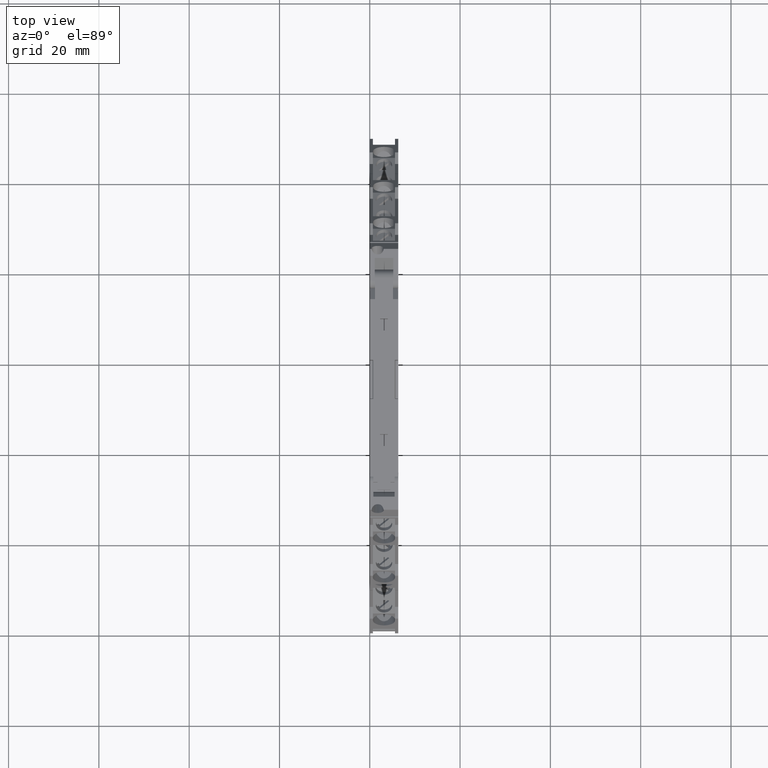
[diagram: clean part render]
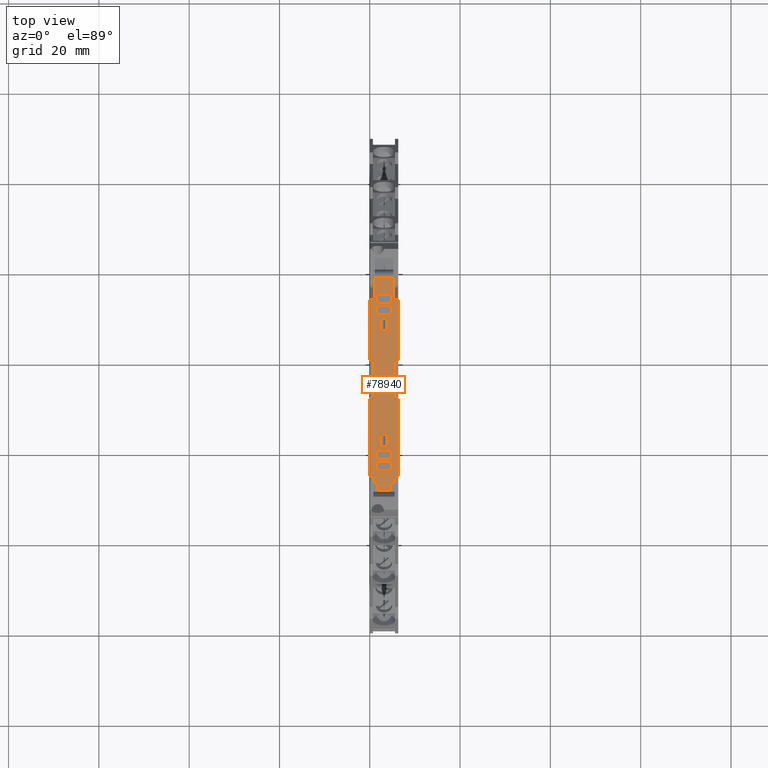
[diagram: same view with one face highlighted and labeled with its STEP entity id]
A machine part, top view. The second image highlights one B-rep face of the part: STEP entity #78940.
In plain terms, the highlighted planar face has unit normal (-0, -0, 1).
Its self-contained STEP definition (entity closure, byte-faithful):
#74280=CARTESIAN_POINT('',(-6.49927640812146,110.199999999949,
-13.9000000015476));
#74290=VERTEX_POINT('',#74280);
#74500=CARTESIAN_POINT('',(-6.57178382632163,110.200000000039,
-11.5500000059275));
#74510=DIRECTION('',(-1.11019430027813E-16,1.,-3.82693666728665E-11));
#74520=DIRECTION('',(-1.,-1.11022301460784E-16,-7.50321528832784E-11));
#74530=AXIS2_PLACEMENT_3D('',#74500,#74510,#74520);
#74540=PLANE('',#74530);
#74550=CARTESIAN_POINT('',(1.15118559197526,110.200000000072,
-10.6911201562861));
#74560=DIRECTION('',(1.,1.11022301450449E-16,7.50321528832784E-11));
#74570=VECTOR('',#74560,1.);
#74580=LINE('',#74550,#74570);
#74590=CARTESIAN_POINT('',(26.7713220694702,110.200000000072,
-10.6911201543637));
#74600=VERTEX_POINT('',#74590);
#74610=CARTESIAN_POINT('',(29.4301250925826,110.200000000072,
-10.6911201541642));
#74620=VERTEX_POINT('',#74610);
#74630=EDGE_CURVE('',#74600,#74620,#74580,.T.);
#74640=ORIENTED_EDGE('',*,*,#74630,.F.);
#74650=CARTESIAN_POINT('',(29.4301250917729,110.200000000485,
0.100000000591375));
#74660=DIRECTION('',(7.50321528832784E-11,-3.82693666728665E-11,-1.));
#74670=VECTOR('',#74660,1.);
#74680=LINE('',#74650,#74670);
#74690=CARTESIAN_POINT('',(29.4301250927115,110.200000000006,
-12.4088798519802));
#74700=VERTEX_POINT('',#74690);
#74710=EDGE_CURVE('',#74620,#74700,#74680,.T.);
#74720=ORIENTED_EDGE('',*,*,#74710,.F.);
#74730=CARTESIAN_POINT('',(1.15118559199036,110.200000000006,
-12.408879854102));
#74740=DIRECTION('',(-1.,-1.11022301450449E-16,-7.50321528832784E-11));
#74750=VECTOR('',#74740,1.);
#74760=LINE('',#74730,#74750);
#74770=CARTESIAN_POINT('',(26.7713220695991,110.200000000006,
-12.4088798521797));
#74780=VERTEX_POINT('',#74770);
#74790=EDGE_CURVE('',#74700,#74780,#74760,.T.);
#74800=ORIENTED_EDGE('',*,*,#74790,.F.);
#74810=CARTESIAN_POINT('',(26.7713220686605,110.200000000485,
0.100000000567998));
#74820=DIRECTION('',(-7.50321528832784E-11,3.82693666728665E-11,1.));
#74830=VECTOR('',#74820,1.);
#74840=LINE('',#74810,#74830);
#74850=EDGE_CURVE('',#74780,#74600,#74840,.T.);
#74860=ORIENTED_EDGE('',*,*,#74850,.F.);
#74870=EDGE_LOOP('',(#74860,#74800,#74720,#74640));
#74880=FACE_BOUND('',#74870,.T.);
#74890=CARTESIAN_POINT('',(1.15118559197526,110.200000000072,
-10.6911201562861));
#74900=DIRECTION('',(1.,1.11022301450449E-16,7.50321528832784E-11));
#74910=VECTOR('',#74900,1.);
#74920=LINE('',#74890,#74910);
#74930=CARTESIAN_POINT('',(1.17132209109853,110.200000000072,
-10.6911201562846));
#74940=VERTEX_POINT('',#74930);
#74950=CARTESIAN_POINT('',(3.83012511421093,110.200000000072,
-10.6911201560851));
#74960=VERTEX_POINT('',#74950);
#74970=EDGE_CURVE('',#74940,#74960,#74920,.T.);
#74980=ORIENTED_EDGE('',*,*,#74970,.F.);
#74990=CARTESIAN_POINT('',(3.83012511340125,110.200000000485,
0.100000000366296));
#75000=DIRECTION('',(7.50321528832784E-11,-3.82693666728665E-11,-1.));
#75010=VECTOR('',#75000,1.);
#75020=LINE('',#74990,#75010);
#75030=CARTESIAN_POINT('',(3.83012511433982,110.200000000006,
-12.408879853901));
#75040=VERTEX_POINT('',#75030);
#75050=EDGE_CURVE('',#74960,#75040,#75020,.T.);
#75060=ORIENTED_EDGE('',*,*,#75050,.F.);
#75070=CARTESIAN_POINT('',(1.15118559199036,110.200000000006,
-12.408879854102));
#75080=DIRECTION('',(-1.,-1.11022301450449E-16,-7.50321528832784E-11));
#75090=VECTOR('',#75080,1.);
#75100=LINE('',#75070,#75090);
#75110=CARTESIAN_POINT('',(1.17132209122742,110.200000000006,
-12.4088798541005));
#75120=VERTEX_POINT('',#75110);
#75130=EDGE_CURVE('',#75040,#75120,#75100,.T.);
#75140=ORIENTED_EDGE('',*,*,#75130,.F.);
#75150=CARTESIAN_POINT('',(1.17132209028885,110.200000000485,
0.100000000342919));
#75160=DIRECTION('',(-7.50321528832784E-11,3.82693666728665E-11,1.));
#75170=VECTOR('',#75160,1.);
#75180=LINE('',#75150,#75170);
#75190=EDGE_CURVE('',#75120,#74940,#75180,.T.);
#75200=ORIENTED_EDGE('',*,*,#75190,.F.);
#75210=EDGE_LOOP('',(#75200,#75140,#75060,#74980));
#75220=FACE_BOUND('',#75210,.T.);
#75230=CARTESIAN_POINT('',(1.15118559196478,110.200000000118,
-9.50000000156393));
#75240=DIRECTION('',(-1.,-1.11019519299545E-16,-2.33272930840562E-12));
#75250=VECTOR('',#75240,1.);
#75260=LINE('',#75230,#75250);
#75270=CARTESIAN_POINT('',(38.500723592,110.200000000118,
-9.5000000014768));
#75280=VERTEX_POINT('',#75270);
#75290=CARTESIAN_POINT('',(38.0007235920675,110.200000000075,
-9.50000000147797));
#75300=VERTEX_POINT('',#75290);
#75310=EDGE_CURVE('',#75280,#75300,#75260,.T.);
#75320=ORIENTED_EDGE('',*,*,#75310,.F.);
#75330=CARTESIAN_POINT('',(38.0007235920713,110.200000000074,
-9.55000300242922));
#75340=DIRECTION('',(-7.50329127375884E-11,3.82702498448278E-11,1.));
#75350=VECTOR('',#75340,1.);
#75360=LINE('',#75330,#75350);
#75370=CARTESIAN_POINT('',(38.0007235920713,110.200000000116,
-9.55000000242922));
#75380=VERTEX_POINT('',#75370);
#75390=EDGE_CURVE('',#75380,#75300,#75360,.T.);
#75400=ORIENTED_EDGE('',*,*,#75390,.T.);
#75410=CARTESIAN_POINT('',(1.15118559196522,110.200000000116,
-9.55000000519412));
#75420=DIRECTION('',(-1.,-1.11022301450449E-16,-7.50321528832784E-11));
#75430=VECTOR('',#75420,1.);
#75440=LINE('',#75410,#75430);
#75450=CARTESIAN_POINT('',(33.7493922405502,110.200000000116,
-9.55000000274821));
#75460=VERTEX_POINT('',#75450);
#75470=EDGE_CURVE('',#75380,#75460,#75440,.T.);
#75480=ORIENTED_EDGE('',*,*,#75470,.F.);
#75490=CARTESIAN_POINT('',(33.7493922398261,110.200000000485,
0.10000000062935));
#75500=DIRECTION('',(7.50321528832784E-11,-3.82693666728665E-11,-1.));
#75510=VECTOR('',#75500,1.);
#75520=LINE('',#75490,#75510);
#75530=CARTESIAN_POINT('',(33.7493922404676,110.200000000158,
-8.45000000282515));
#75540=VERTEX_POINT('',#75530);
#75550=EDGE_CURVE('',#75540,#75460,#75520,.T.);
#75560=ORIENTED_EDGE('',*,*,#75550,.T.);
#75570=CARTESIAN_POINT('',(1.15118559195555,110.200000000158,
-8.45000000527106));
#75580=DIRECTION('',(1.,1.11022301456429E-16,7.50321528832784E-11));
#75590=VECTOR('',#75580,1.);
#75600=LINE('',#75570,#75590);
#75610=CARTESIAN_POINT('',(20.298501746368,110.200000000158,
-8.4500000038344));
#75620=VERTEX_POINT('',#75610);
#75630=EDGE_CURVE('',#75620,#75540,#75600,.T.);
#75640=ORIENTED_EDGE('',*,*,#75630,.T.);
#75650=CARTESIAN_POINT('',(20.2985017457265,110.200000000485,
0.100000000511088));
#75660=DIRECTION('',(7.50321528832784E-11,-3.82693666728665E-11,-1.));
#75670=VECTOR('',#75660,1.);
#75680=LINE('',#75650,#75670);
#75690=CARTESIAN_POINT('',(20.2985017464204,110.200000000131,
-9.14777815563321));
#75700=VERTEX_POINT('',#75690);
#75710=EDGE_CURVE('',#75620,#75700,#75680,.T.);
#75720=ORIENTED_EDGE('',*,*,#75710,.F.);
#75730=CARTESIAN_POINT('',(1.15118559196169,110.200000000131,
-9.14777815706988));
#75740=DIRECTION('',(-1.,-1.11022301455509E-16,-7.50321528832784E-11));
#75750=VECTOR('',#75740,1.);
#75760=LINE('',#75730,#75750);
#75770=CARTESIAN_POINT('',(11.7029454372739,110.200000000131,
-9.14777815627816));
#75780=VERTEX_POINT('',#75770);
#75790=EDGE_CURVE('',#75700,#75780,#75760,.T.);
#75800=ORIENTED_EDGE('',*,*,#75790,.F.);
#75810=CARTESIAN_POINT('',(11.70294543658,110.200000000485,
0.100000000435515));
#75820=DIRECTION('',(-7.50321528832784E-11,3.82693666728665E-11,1.));
#75830=VECTOR('',#75820,1.);
#75840=LINE('',#75810,#75830);
#75850=CARTESIAN_POINT('',(11.7029454372215,110.200000000158,
-8.45000000447934));
#75860=VERTEX_POINT('',#75850);
#75870=EDGE_CURVE('',#75780,#75860,#75840,.T.);
#75880=ORIENTED_EDGE('',*,*,#75870,.F.);
#75890=CARTESIAN_POINT('',(-5.54571119067333,110.200000000158,
-8.45000000577354));
#75900=VERTEX_POINT('',#75890);
#75910=EDGE_CURVE('',#75900,#75860,#75600,.T.);
#75920=ORIENTED_EDGE('',*,*,#75910,.T.);
#75930=CARTESIAN_POINT('',(-5.54571119065338,110.200000000485,
0.100000000283862));
#75940=DIRECTION('',(2.3327106029319E-12,3.82693666728665E-11,1.));
#75950=VECTOR('',#75940,1.);
#75960=LINE('',#75930,#75950);
#75970=CARTESIAN_POINT('',(-5.54571119067508,110.200000000129,
-9.20000000138976));
#75980=VERTEX_POINT('',#75970);
#75990=EDGE_CURVE('',#75980,#75900,#75960,.T.);
#76000=ORIENTED_EDGE('',*,*,#75990,.T.);
#76010=CARTESIAN_POINT('',(1.15118559196215,110.200000000129,
-9.20000000140538));
#76020=DIRECTION('',(-1.,-1.11019340754548E-16,2.33276942258406E-12));
#76030=VECTOR('',#76020,1.);
#76040=LINE('',#76010,#76030);
#76050=CARTESIAN_POINT('',(-6.49927640809956,110.200000000129,
-9.20000000138753));
#76060=VERTEX_POINT('',#76050);
#76070=EDGE_CURVE('',#75980,#76060,#76040,.T.);
#76080=ORIENTED_EDGE('',*,*,#76070,.F.);
#76090=CARTESIAN_POINT('',(1.15118559196215,110.200000000129,
-9.20000000140538));
#76100=DIRECTION('',(-1.,-1.11019340754548E-16,2.33276942258407E-12));
#76110=VECTOR('',#76100,1.);
#76120=LINE('',#76090,#76110);
#76130=CARTESIAN_POINT('',(-6.79927687201046,110.200000000129,
-9.20000000138683));
#76140=VERTEX_POINT('',#76130);
#76150=EDGE_CURVE('',#76060,#76140,#76120,.T.);
#76160=ORIENTED_EDGE('',*,*,#76150,.F.);
#76170=CARTESIAN_POINT('',(-6.79927687203215,110.200000000485,
0.100000000272841));
#76180=DIRECTION('',(-2.33272930840563E-12,3.82693666728665E-11,1.));
#76190=VECTOR('',#76180,1.);
#76200=LINE('',#76170,#76190);
#76210=CARTESIAN_POINT('',(-6.79927687200833,110.200000000094,
-10.1139640577332));
#76220=VERTEX_POINT('',#76210);
#76230=EDGE_CURVE('',#76220,#76140,#76200,.T.);
#76240=ORIENTED_EDGE('',*,*,#76230,.T.);
#76250=CARTESIAN_POINT('',(1.15118559197018,110.200000000094,
-10.1139640571366));
#76260=DIRECTION('',(-1.,-1.11022301454975E-16,-7.50321528832784E-11));
#76270=VECTOR('',#76260,1.);
#76280=LINE('',#76250,#76270);
#76290=CARTESIAN_POINT('',(-8.49927640820279,110.200000000094,
-10.1139640578607));
#76300=VERTEX_POINT('',#76290);
#76310=EDGE_CURVE('',#76220,#76300,#76280,.T.);
#76320=ORIENTED_EDGE('',*,*,#76310,.F.);
#76330=CARTESIAN_POINT('',(-8.49927640896917,110.200000000485,
0.100000000257894));
#76340=DIRECTION('',(-7.50321528832784E-11,3.82693666728665E-11,1.));
#76350=VECTOR('',#76340,1.);
#76360=LINE('',#76330,#76350);
#76370=CARTESIAN_POINT('',(-8.49927640798729,110.199999999984,
-12.9860359539756));
#76380=VERTEX_POINT('',#76370);
#76390=EDGE_CURVE('',#76380,#76300,#76360,.T.);
#76400=ORIENTED_EDGE('',*,*,#76390,.T.);
#76410=CARTESIAN_POINT('',(1.15118559199543,110.199999999984,
-12.9860359532515));
#76420=DIRECTION('',(1.,1.11022301454975E-16,7.50321528832785E-11));
#76430=VECTOR('',#76420,1.);
#76440=LINE('',#76410,#76430);
#76450=CARTESIAN_POINT('',(-6.79927687200163,110.199999999984,
-12.986035953848));
#76460=VERTEX_POINT('',#76450);
#76470=EDGE_CURVE('',#76380,#76460,#76440,.T.);
#76480=ORIENTED_EDGE('',*,*,#76470,.F.);
#76490=CARTESIAN_POINT('',(-6.7992768719995,110.199999999949,
-13.9000000015503));
#76500=VERTEX_POINT('',#76490);
#76510=EDGE_CURVE('',#76500,#76460,#76200,.T.);
#76520=ORIENTED_EDGE('',*,*,#76510,.T.);
#76530=CARTESIAN_POINT('',(1.15118559200347,110.199999999949,
-13.9000000014797));
#76540=DIRECTION('',(1.,1.11019769826332E-16,8.87912561076058E-12));
#76550=VECTOR('',#76540,1.);
#76560=LINE('',#76530,#76550);
#76570=EDGE_CURVE('',#76500,#74290,#76560,.T.);
#76580=ORIENTED_EDGE('',*,*,#76570,.F.);
#76590=CARTESIAN_POINT('',(1.15118559200347,110.199999999949,
-13.9000000014797));
#76600=DIRECTION('',(1.,1.11019769826332E-16,8.8791256107606E-12));
#76610=VECTOR('',#76600,1.);
#76620=LINE('',#76590,#76610);
#76630=CARTESIAN_POINT('',(-5.545711032584,110.199999999949,
-13.9000000015392));
#76640=VERTEX_POINT('',#76630);
#76650=EDGE_CURVE('',#74290,#76640,#76620,.T.);
#76660=ORIENTED_EDGE('',*,*,#76650,.F.);
#76670=CARTESIAN_POINT('',(-5.54571103270831,110.200000000485,
0.100000000283862));
#76680=DIRECTION('',(-8.8791256107606E-12,3.82693666728665E-11,1.));
#76690=VECTOR('',#76680,1.);
#76700=LINE('',#76670,#76690);
#76710=CARTESIAN_POINT('',(-5.54571103257734,110.19999999992,
-14.6500000057735));
#76720=VERTEX_POINT('',#76710);
#76730=EDGE_CURVE('',#76720,#76640,#76700,.T.);
#76740=ORIENTED_EDGE('',*,*,#76730,.T.);
#76750=CARTESIAN_POINT('',(1.15118559201006,110.19999999992,
-14.650000005271));
#76760=DIRECTION('',(1.,1.11022301456429E-16,7.50321528832785E-11));
#76770=VECTOR('',#76760,1.);
#76780=LINE('',#76750,#76770);
#76790=CARTESIAN_POINT('',(11.7029454376867,110.19999999992,
-14.6500000044793));
#76800=VERTEX_POINT('',#76790);
#76810=EDGE_CURVE('',#76720,#76800,#76780,.T.);
#76820=ORIENTED_EDGE('',*,*,#76810,.F.);
#76830=CARTESIAN_POINT('',(11.70294543658,110.200000000485,
0.100000000435515));
#76840=DIRECTION('',(-7.50321528832784E-11,3.82693666728665E-11,1.));
#76850=VECTOR('',#76840,1.);
#76860=LINE('',#76830,#76850);
#76870=CARTESIAN_POINT('',(11.7029454376344,110.199999999947,
-13.9522218475262));
#76880=VERTEX_POINT('',#76870);
#76890=EDGE_CURVE('',#76800,#76880,#76860,.T.);
#76900=ORIENTED_EDGE('',*,*,#76890,.F.);
#76910=CARTESIAN_POINT('',(1.15118559200393,110.199999999947,
-13.952221848318));
#76920=DIRECTION('',(1.,1.11022301455509E-16,7.50321528832784E-11));
#76930=VECTOR('',#76920,1.);
#76940=LINE('',#76910,#76930);
#76950=CARTESIAN_POINT('',(20.2985017467809,110.199999999947,
-13.9522218468813));
#76960=VERTEX_POINT('',#76950);
#76970=EDGE_CURVE('',#76880,#76960,#76940,.T.);
#76980=ORIENTED_EDGE('',*,*,#76970,.F.);
#76990=CARTESIAN_POINT('',(20.2985017457265,110.200000000485,
0.100000000511088));
#77000=DIRECTION('',(7.50321528832784E-11,-3.82693666728665E-11,-1.));
#77010=VECTOR('',#77000,1.);
#77020=LINE('',#76990,#77010);
#77030=CARTESIAN_POINT('',(20.2985017468332,110.19999999992,
-14.6500000038343));
#77040=VERTEX_POINT('',#77030);
#77050=EDGE_CURVE('',#76960,#77040,#77020,.T.);
#77060=ORIENTED_EDGE('',*,*,#77050,.F.);
#77070=CARTESIAN_POINT('',(33.7493922409624,110.19999999992,
-14.6500000028251));
#77080=VERTEX_POINT('',#77070);
#77090=EDGE_CURVE('',#77040,#77080,#76780,.T.);
#77100=ORIENTED_EDGE('',*,*,#77090,.F.);
#77110=CARTESIAN_POINT('',(33.7493922398556,110.200000000485,
0.10000000062935));
#77120=DIRECTION('',(7.50321528832784E-11,-3.82693666728665E-11,-1.));
#77130=VECTOR('',#77120,1.);
#77140=LINE('',#77110,#77130);
#77150=CARTESIAN_POINT('',(33.7493922408798,110.199999999963,
-13.5500000027481));
#77160=VERTEX_POINT('',#77150);
#77170=EDGE_CURVE('',#77160,#77080,#77140,.T.);
#77180=ORIENTED_EDGE('',*,*,#77170,.T.);
#77190=CARTESIAN_POINT('',(1.15118559200039,110.199999999963,
-13.550000005194));
#77200=DIRECTION('',(1.,1.11022301450449E-16,7.50321528832784E-11));
#77210=VECTOR('',#77200,1.);
#77220=LINE('',#77190,#77210);
#77230=CARTESIAN_POINT('',(37.8109073439702,110.199999999963,
-13.5500000024433));
#77240=VERTEX_POINT('',#77230);
#77250=EDGE_CURVE('',#77160,#77240,#77220,.T.);
#77260=ORIENTED_EDGE('',*,*,#77250,.F.);
#77270=CARTESIAN_POINT('',(40.5471615470792,110.199999999919,
-14.700000025792));
#77280=CARTESIAN_POINT('',(39.6983488953998,110.199999999919,
-14.7000000258011));
#77290=CARTESIAN_POINT('',(38.8495362437204,110.199999999919,
-14.7000000258134));
#77300=CARTESIAN_POINT('',(37.6847600700366,110.199999999919,
-14.7000000258285));
#77310=CARTESIAN_POINT('',(37.3743560280508,110.200000000283,
-5.16937412659455));
#77320=CARTESIAN_POINT('',(36.8270911518843,110.200000001669,
31.0364593499661));
#77330=CARTESIAN_POINT('',(36.5998596208457,110.200000002665,
57.0746135346101));
#77340=CARTESIAN_POINT('',(36.2838960941361,110.200000005065,
119.784956646399));
#77350=CARTESIAN_POINT('',(36.2007235792814,110.200000006426,
155.353736730281));
#77360=CARTESIAN_POINT('',(36.2007235765648,110.200000007812,
191.559570206846));
#77370=B_SPLINE_CURVE_WITH_KNOTS('',3,(#77270,#77280,#77290,#77300,
#77310,#77320,#77330,#77340,#77350,#77360),.UNSPECIFIED.,.F.,.F.,(4,2,2,
2,4),(-2.68642609847781,0.,1.,2.,3.),.UNSPECIFIED.);
#77380=CARTESIAN_POINT('',(37.815068122154,110.199999999961,
-13.600000002101));
#77390=VERTEX_POINT('',#77380);
#77400=EDGE_CURVE('',#77390,#77240,#77370,.T.);
#77410=ORIENTED_EDGE('',*,*,#77400,.T.);
#77420=CARTESIAN_POINT('',(1.15118559200083,110.199999999961,
-13.6000000057699));
#77430=DIRECTION('',(1.,1.11023259661641E-16,1.00070313863015E-10));
#77440=VECTOR('',#77430,1.);
#77450=LINE('',#77420,#77440);
#77460=CARTESIAN_POINT('',(38.5007235920564,110.199999999961,
-13.6000000017214));
#77470=VERTEX_POINT('',#77460);
#77480=EDGE_CURVE('',#77390,#77470,#77450,.T.);
#77490=ORIENTED_EDGE('',*,*,#77480,.F.);
#77500=CARTESIAN_POINT('',(38.5007235918678,110.200000000485,
0.10000000060224));
#77510=DIRECTION('',(-1.37658449900878E-11,3.82693666728665E-11,1.));
#77520=VECTOR('',#77510,1.);
#77530=LINE('',#77500,#77520);
#77540=EDGE_CURVE('',#77470,#75280,#77530,.T.);
#77550=ORIENTED_EDGE('',*,*,#77540,.F.);
#77560=EDGE_LOOP('',(#77550,#77490,#77410,#77260,#77180,#77100,#77060,
#76980,#76900,#76820,#76740,#76660,#76580,#76520,#76480,#76400,#76320,
#76240,#76160,#76080,#76000,#75920,#75880,#75800,#75720,#75640,#75560,
#75480,#75400,#75320));
#77570=FACE_OUTER_BOUND('',#77560,.T.);
#77580=CARTESIAN_POINT('',(1.15118559196786,110.200000000104,
-9.85000000527107));
#77590=DIRECTION('',(1.,1.11022301463374E-16,7.50321528832785E-11));
#77600=VECTOR('',#77590,1.);
#77610=LINE('',#77580,#77600);
#77620=CARTESIAN_POINT('',(-4.24927640809874,110.200000000104,
-9.85000000567627));
#77630=VERTEX_POINT('',#77620);
#77640=CARTESIAN_POINT('',(-2.24927640809874,110.200000000104,
-9.85000000552621));
#77650=VERTEX_POINT('',#77640);
#77660=EDGE_CURVE('',#77630,#77650,#77610,.T.);
#77670=ORIENTED_EDGE('',*,*,#77660,.F.);
#77680=CARTESIAN_POINT('',(-2.24927640884532,110.200000000485,
0.100000000312845));
#77690=DIRECTION('',(7.50321528832785E-11,-3.82693666728665E-11,-1.));
#77700=VECTOR('',#77690,1.);
#77710=LINE('',#77680,#77700);
#77720=CARTESIAN_POINT('',(-2.24927640784364,110.199999999974,
-13.2500000054581));
#77730=VERTEX_POINT('',#77720);
#77740=EDGE_CURVE('',#77650,#77730,#77710,.T.);
#77750=ORIENTED_EDGE('',*,*,#77740,.F.);
#77760=CARTESIAN_POINT('',(1.15118559199775,110.199999999974,
-13.250000005203));
#77770=DIRECTION('',(-1.,-1.11022301463374E-16,-7.50321528832785E-11));
#77780=VECTOR('',#77770,1.);
#77790=LINE('',#77760,#77780);
#77800=CARTESIAN_POINT('',(-4.24927640784364,110.199999999974,
-13.2500000056082));
#77810=VERTEX_POINT('',#77800);
#77820=EDGE_CURVE('',#77730,#77810,#77790,.T.);
#77830=ORIENTED_EDGE('',*,*,#77820,.F.);
#77840=CARTESIAN_POINT('',(-4.24927640884531,110.200000000485,
0.100000000295261));
#77850=DIRECTION('',(-7.50321528832785E-11,3.82693666728665E-11,1.));
#77860=VECTOR('',#77850,1.);
#77870=LINE('',#77840,#77860);
#77880=EDGE_CURVE('',#77810,#77630,#77870,.T.);
#77890=ORIENTED_EDGE('',*,*,#77880,.F.);
#77900=EDGE_LOOP('',(#77890,#77830,#77750,#77670));
#77910=FACE_BOUND('',#77900,.T.);
#77920=CARTESIAN_POINT('',(1.15118559196786,110.200000000104,
-9.85000000519412));
#77930=DIRECTION('',(1.,1.11022301463374E-16,7.50321528832785E-11));
#77940=VECTOR('',#77930,1.);
#77950=LINE('',#77920,#77940);
#77960=CARTESIAN_POINT('',(32.850723591528,110.200000000104,
-9.85000000281564));
#77970=VERTEX_POINT('',#77960);
#77980=CARTESIAN_POINT('',(34.8507235914457,110.200000000104,
-9.85000000266557));
#77990=VERTEX_POINT('',#77980);
#78000=EDGE_CURVE('',#77970,#77990,#77950,.T.);
#78010=ORIENTED_EDGE('',*,*,#78000,.F.);
#78020=CARTESIAN_POINT('',(34.8507235906992,110.200000000485,
0.100000000639033));
#78030=DIRECTION('',(7.50321528832785E-11,-3.82693666728665E-11,-1.));
#78040=VECTOR('',#78030,1.);
#78050=LINE('',#78020,#78040);
#78060=CARTESIAN_POINT('',(34.8507235917009,110.199999999974,
-13.2500000026654));
#78070=VERTEX_POINT('',#78060);
#78080=EDGE_CURVE('',#77990,#78070,#78050,.T.);
#78090=ORIENTED_EDGE('',*,*,#78080,.F.);
#78100=CARTESIAN_POINT('',(1.15118559199775,110.199999999974,
-13.250000005194));
#78110=DIRECTION('',(-1.,-1.11022301463374E-16,-7.50321528832785E-11));
#78120=VECTOR('',#78110,1.);
#78130=LINE('',#78100,#78120);
#78140=CARTESIAN_POINT('',(32.8507235917831,110.199999999974,
-13.2500000028155));
#78150=VERTEX_POINT('',#78140);
#78160=EDGE_CURVE('',#78070,#78150,#78130,.T.);
#78170=ORIENTED_EDGE('',*,*,#78160,.F.);
#78180=CARTESIAN_POINT('',(32.8507235907814,110.200000000485,
0.100000000621449));
#78190=DIRECTION('',(-7.50321528832785E-11,3.82693666728665E-11,1.));
#78200=VECTOR('',#78190,1.);
#78210=LINE('',#78180,#78200);
#78220=EDGE_CURVE('',#78150,#77970,#78210,.T.);
#78230=ORIENTED_EDGE('',*,*,#78220,.F.);
#78240=EDGE_LOOP('',(#78230,#78170,#78090,#78010));
#78250=FACE_BOUND('',#78240,.T.);
#78260=CARTESIAN_POINT('',(-1.7492764087789,110.200000000485,
0.100000000317241));
#78270=DIRECTION('',(-7.50321528832785E-11,3.82693666728665E-11,1.));
#78280=VECTOR('',#78270,1.);
#78290=LINE('',#78260,#78280);
#78300=CARTESIAN_POINT('',(-1.74927640777722,110.199999999974,
-13.2500000054206));
#78310=VERTEX_POINT('',#78300);
#78320=CARTESIAN_POINT('',(-1.74927640803233,110.200000000104,
-9.85000000548869));
#78330=VERTEX_POINT('',#78320);
#78340=EDGE_CURVE('',#78310,#78330,#78290,.T.);
#78350=ORIENTED_EDGE('',*,*,#78340,.F.);
#78360=CARTESIAN_POINT('',(1.15118559196786,110.200000000104,
-9.85000000527107));
#78370=DIRECTION('',(1.,1.11022301463374E-16,7.50321528832785E-11));
#78380=VECTOR('',#78370,1.);
#78390=LINE('',#78360,#78380);
#78400=CARTESIAN_POINT('',(0.250723591967665,110.200000000104,
-9.85000000533863));
#78410=VERTEX_POINT('',#78400);
#78420=EDGE_CURVE('',#78330,#78410,#78390,.T.);
#78430=ORIENTED_EDGE('',*,*,#78420,.F.);
#78440=CARTESIAN_POINT('',(0.250723591221093,110.200000000485,
0.100000000334825));
#78450=DIRECTION('',(7.50321528832785E-11,-3.82693666728665E-11,-1.));
#78460=VECTOR('',#78450,1.);
#78470=LINE('',#78440,#78460);
#78480=CARTESIAN_POINT('',(0.250723592222772,110.199999999974,
-13.2500000052706));
#78490=VERTEX_POINT('',#78480);
#78500=EDGE_CURVE('',#78410,#78490,#78470,.T.);
#78510=ORIENTED_EDGE('',*,*,#78500,.F.);
#78520=CARTESIAN_POINT('',(1.15118559199775,110.199999999974,
-13.250000005203));
#78530=DIRECTION('',(-1.,-1.11022301463374E-16,-7.50321528832785E-11));
#78540=VECTOR('',#78530,1.);
#78550=LINE('',#78520,#78540);
#78560=EDGE_CURVE('',#78490,#78310,#78550,.T.);
#78570=ORIENTED_EDGE('',*,*,#78560,.F.);
#78580=EDGE_LOOP('',(#78570,#78510,#78430,#78350));
#78590=FACE_BOUND('',#78580,.T.);
#78600=CARTESIAN_POINT('',(30.3507235906857,110.200000000485,
0.100000000599469));
#78610=DIRECTION('',(-7.50321528832785E-11,3.82693666728665E-11,1.));
#78620=VECTOR('',#78610,1.);
#78630=LINE('',#78600,#78620);
#78640=CARTESIAN_POINT('',(30.3507235916051,110.199999999974,
-13.2500000030121));
#78650=VERTEX_POINT('',#78640);
#78660=CARTESIAN_POINT('',(30.3507235914323,110.200000000104,
-9.85000000308016));
#78670=VERTEX_POINT('',#78660);
#78680=EDGE_CURVE('',#78650,#78670,#78630,.T.);
#78690=ORIENTED_EDGE('',*,*,#78680,.F.);
#78700=CARTESIAN_POINT('',(1.15118559196786,110.200000000104,
-9.85000000527106));
#78710=DIRECTION('',(1.,1.11022301463374E-16,7.50321528832785E-11));
#78720=VECTOR('',#78710,1.);
#78730=LINE('',#78700,#78720);
#78740=CARTESIAN_POINT('',(32.35072359135,110.200000000104,
-9.85000000293009));
#78750=VERTEX_POINT('',#78740);
#78760=EDGE_CURVE('',#78670,#78750,#78730,.T.);
#78770=ORIENTED_EDGE('',*,*,#78760,.F.);
#78780=CARTESIAN_POINT('',(32.3507235906034,110.200000000485,
0.100000000617053));
#78790=DIRECTION('',(7.50321528832785E-11,-3.82693666728665E-11,-1.));
#78800=VECTOR('',#78790,1.);
#78810=LINE('',#78780,#78800);
#78820=CARTESIAN_POINT('',(32.3507235916051,110.199999999974,
-13.250000002862));
#78830=VERTEX_POINT('',#78820);
#78840=EDGE_CURVE('',#78750,#78830,#78810,.T.);
#78850=ORIENTED_EDGE('',*,*,#78840,.F.);
#78860=CARTESIAN_POINT('',(1.15118559199775,110.199999999974,
-13.250000005203));
#78870=DIRECTION('',(-1.,-1.11022301463374E-16,-7.50321528832785E-11));
#78880=VECTOR('',#78870,1.);
#78890=LINE('',#78860,#78880);
#78900=EDGE_CURVE('',#78830,#78650,#78890,.T.);
#78910=ORIENTED_EDGE('',*,*,#78900,.F.);
#78920=EDGE_LOOP('',(#78910,#78850,#78770,#78690));
#78930=FACE_BOUND('',#78920,.T.);
#78940=ADVANCED_FACE('',(#74880,#75220,#77570,#77910,#78250,#78590,
#78930),#74540,.T.);